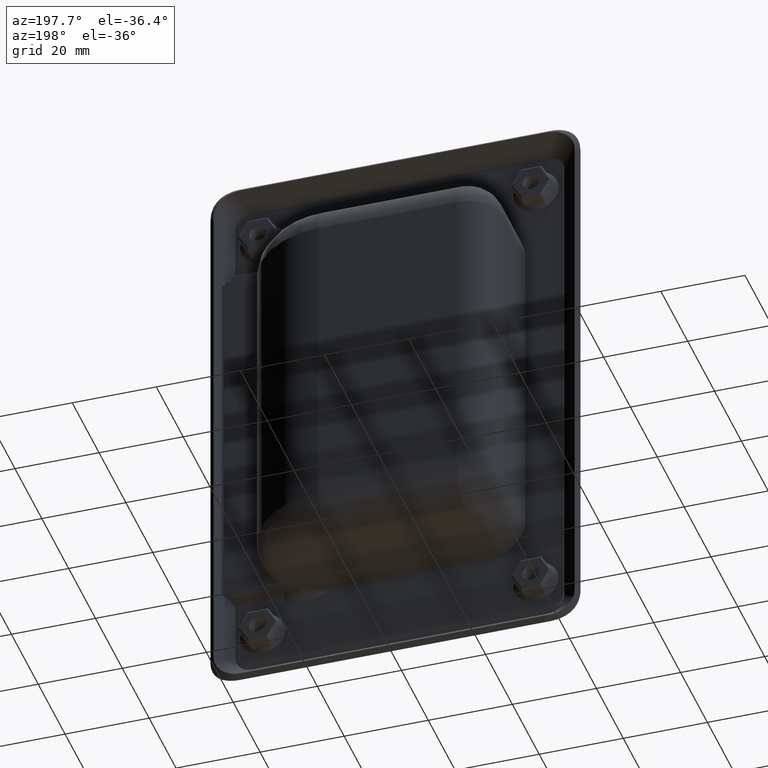
[diagram: clean part render]
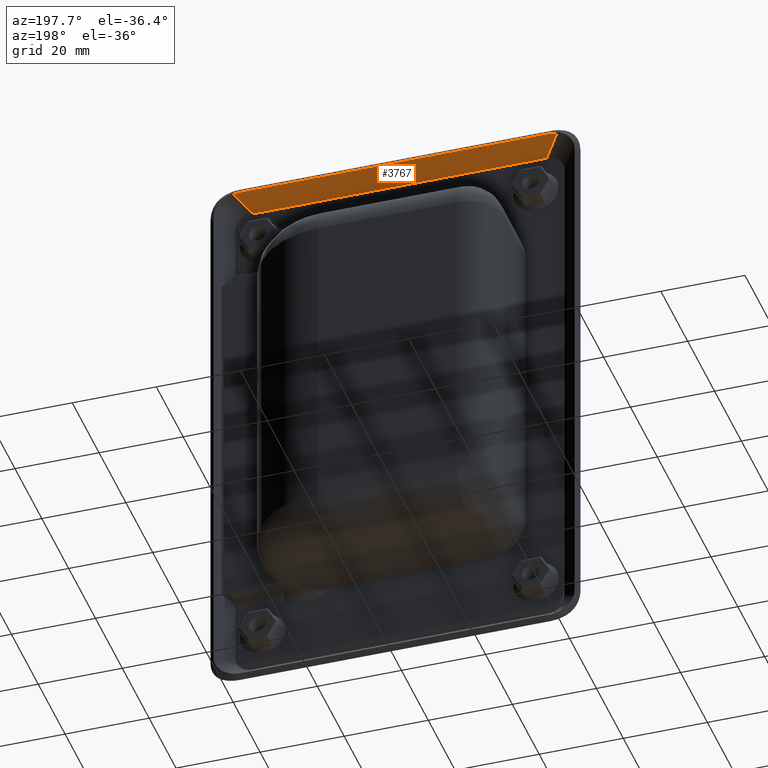
[diagram: same view with one face highlighted and labeled with its STEP entity id]
A machine part, auxiliary view. The second image highlights one B-rep face of the part: STEP entity #3767.
In plain terms, the highlighted face is a freeform B-spline surface patch.
Its self-contained STEP definition (entity closure, byte-faithful):
#2241=CARTESIAN_POINT('',(-36.939999999823549,4.879066376115479,67.939999999809800));
#2242=VERTEX_POINT('',#2241);
#2248=CARTESIAN_POINT('',(-38.492914270439051,4.674621333849820,67.735554957544593));
#2249=VERTEX_POINT('',#2248);
#2250=CARTESIAN_POINT('',(-38.492914270439051,4.674621333849820,67.735554957544593));
#2251=CARTESIAN_POINT('',(-37.998652464228577,4.808918956468217,67.869852580162856));
#2252=CARTESIAN_POINT('',(-37.469510104133143,4.878635327750732,67.939568951445040));
#2253=CARTESIAN_POINT('',(-36.939999999823549,4.879066376115479,67.939999999809800));
#2254=B_SPLINE_CURVE_WITH_KNOTS('',3,(#2250,#2251,#2252,#2253),.UNSPECIFIED.,.F.,.U.,(4,4),(7.864245E-009,1.588424361540089),.UNSPECIFIED.);
#2255=EDGE_CURVE('',#2249,#2242,#2254,.T.);
#2297=CARTESIAN_POINT('',(-34.878292936589247,1.060000000000000,64.120933623693801));
#2298=VERTEX_POINT('',#2297);
#2318=CARTESIAN_POINT('',(-34.878292936589247,1.060000000000000,64.120933623693801));
#2319=CARTESIAN_POINT('',(-38.492914270439051,4.674621333849820,67.735554957544593));
#2320=QUASI_UNIFORM_CURVE('',1,(#2318,#2319),.UNSPECIFIED.,.F.,.U.);
#2321=EDGE_CURVE('',#2298,#2249,#2320,.T.);
#2698=CARTESIAN_POINT('',(36.940000000176497,4.879066376115479,67.939999999789094));
#2699=VERTEX_POINT('',#2698);
#2722=CARTESIAN_POINT('',(38.492914270791204,4.674621333849980,67.735554957523092));
#2723=VERTEX_POINT('',#2722);
#2735=CARTESIAN_POINT('',(36.940000000176497,4.879066376115479,67.939999999789094));
#2736=CARTESIAN_POINT('',(37.469470317171599,4.878190103282002,67.939123726955401));
#2737=CARTESIAN_POINT('',(37.998458460928788,4.808479084667277,67.869412708340477));
#2738=CARTESIAN_POINT('',(38.492914270791204,4.674621333849980,67.735554957523092));
#2739=B_SPLINE_CURVE_WITH_KNOTS('',3,(#2735,#2736,#2737,#2738),.UNSPECIFIED.,.F.,.U.,(4,4),(7.658144E-009,1.588308108463896),.UNSPECIFIED.);
#2740=EDGE_CURVE('',#2699,#2723,#2739,.T.);
#2759=CARTESIAN_POINT('',(34.878292936941250,1.060000000000000,64.120933623674205));
#2760=VERTEX_POINT('',#2759);
#2776=CARTESIAN_POINT('',(38.492914270791204,4.674621333849980,67.735554957523092));
#2777=CARTESIAN_POINT('',(34.878292936941250,1.060000000000000,64.120933623674205));
#2778=QUASI_UNIFORM_CURVE('',1,(#2776,#2777),.UNSPECIFIED.,.F.,.U.);
#2779=EDGE_CURVE('',#2723,#2760,#2778,.T.);
#3746=CARTESIAN_POINT('',(-42.338358424923669,0.869237479774240,63.930171103470123));
#3747=CARTESIAN_POINT('',(-42.338358424923662,5.069829988973267,68.130763612669170));
#3748=CARTESIAN_POINT('',(42.338358425275800,0.869237479786144,63.930171103458221));
#3749=CARTESIAN_POINT('',(42.338358425275800,5.069829988985172,68.130763612657248));
#3750=B_SPLINE_SURFACE_WITH_KNOTS('',1,1,((#3746,#3748),(#3747,#3749)),.UNSPECIFIED.,.F.,.F.,.U.,(2,2),(2,2),(0.0,5.940534896512109),(0.0,84.676716850199469),.UNSPECIFIED.);
#3751=ORIENTED_EDGE('',*,*,#2321,.T.);
#3752=ORIENTED_EDGE('',*,*,#2255,.T.);
#3753=CARTESIAN_POINT('',(-36.939999999823549,4.879066376115479,67.939999999809800));
#3754=CARTESIAN_POINT('',(36.940000000176497,4.879066376115479,67.939999999789094));
#3755=QUASI_UNIFORM_CURVE('',1,(#3753,#3754),.UNSPECIFIED.,.F.,.U.);
#3756=EDGE_CURVE('',#2242,#2699,#3755,.T.);
#3757=ORIENTED_EDGE('',*,*,#3756,.T.);
#3758=ORIENTED_EDGE('',*,*,#2740,.T.);
#3759=ORIENTED_EDGE('',*,*,#2779,.T.);
#3760=CARTESIAN_POINT('',(34.878292936941250,1.060000000000000,64.120933623674205));
#3761=CARTESIAN_POINT('',(-34.878292936589247,1.060000000000000,64.120933623693801));
#3762=QUASI_UNIFORM_CURVE('',1,(#3760,#3761),.UNSPECIFIED.,.F.,.U.);
#3763=EDGE_CURVE('',#2760,#2298,#3762,.T.);
#3764=ORIENTED_EDGE('',*,*,#3763,.T.);
#3765=EDGE_LOOP('',(#3751,#3752,#3757,#3758,#3759,#3764));
#3766=FACE_OUTER_BOUND('',#3765,.T.);
#3767=ADVANCED_FACE('',(#3766),#3750,.T.);